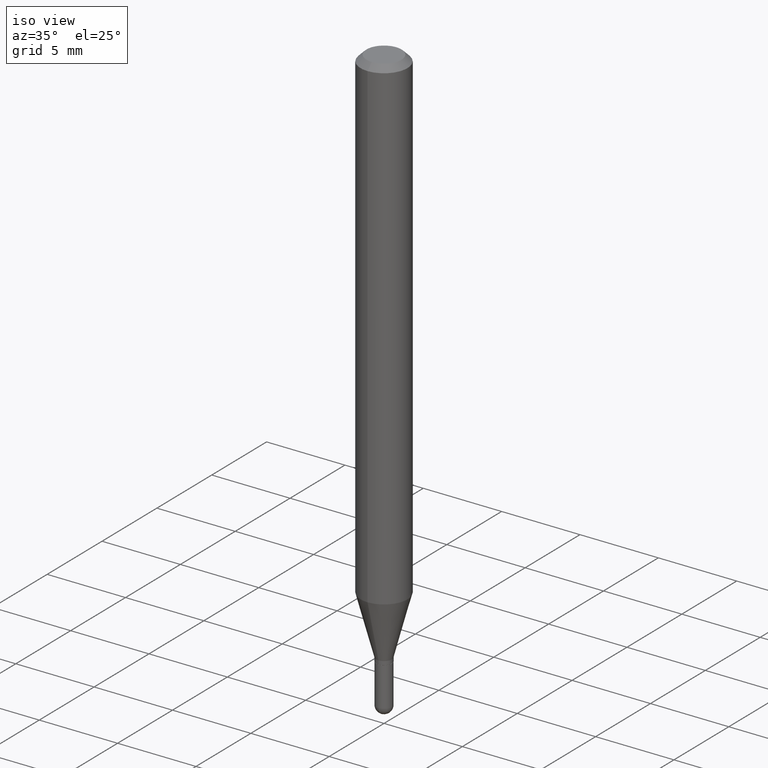
[diagram: clean part render]
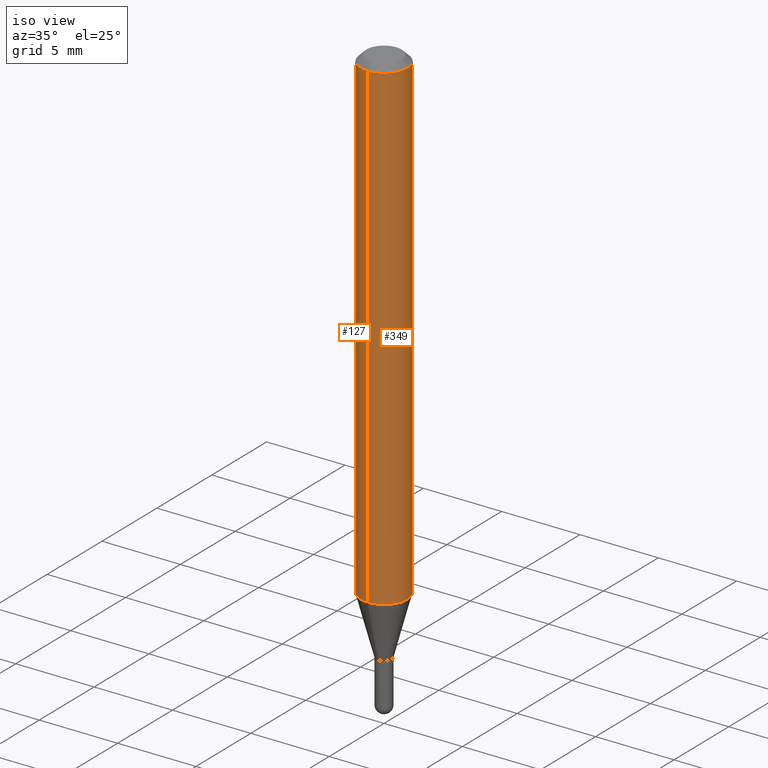
[diagram: same view with one multi-face feature highlighted, each face labeled with its STEP entity id]
A machine part, iso view. The highlighted faces form ONE feature: a constant-radius fillet chain: 2 tangent blend faces with common blend radius 1.4999 mm. The faces share edges in the B-rep.
Their STEP definitions:
[1] entity #349 (Cylinder):
#8 = AXIS2_PLACEMENT_3D ( 'NONE', #19, #184, #501 ) ;
#10 = DIRECTION ( 'NONE',  ( -2.444811295007267252E-29, 3.492422932273066730E-15, 1.000000000000000000 ) ) ;
#18 = VERTEX_POINT ( 'NONE', #417 ) ;
#19 = CARTESIAN_POINT ( 'NONE',  ( 0.000000000000000000, 0.000000000000000000, 0.000000000000000000 ) ) ;
#33 = ORIENTED_EDGE ( 'NONE', *, *, #143, .T. ) ;
#79 = DIRECTION ( 'NONE',  ( -6.982962677686265922E-15, -1.000000000000000000, 3.505890868245046092E-15 ) ) ;
#82 = DIRECTION ( 'NONE',  ( -6.982962677686265922E-15, -1.000000000000000000, 4.626330217890369336E-15 ) ) ;
#100 = ORIENTED_EDGE ( 'NONE', *, *, #412, .F. ) ;
#106 = EDGE_CURVE ( 'NONE', #450, #18, #193, .T. ) ;
#143 = EDGE_CURVE ( 'NONE', #470, #450, #490, .T. ) ;
#145 = ORIENTED_EDGE ( 'NONE', *, *, #106, .T. ) ;
#157 = CARTESIAN_POINT ( 'NONE',  ( 2.985710637963151860E-29, -4.265099855538406098E-15, -1.221243800722164430 ) ) ;
#158 = LINE ( 'NONE', #199, #298 ) ;
#170 = AXIS2_PLACEMENT_3D ( 'NONE', #398, #328, #79 ) ;
#180 = CARTESIAN_POINT ( 'NONE',  ( 4.195754854663687794E-16, 0.05904999999999571703, -1.221243800722164652 ) ) ;
#184 = DIRECTION ( 'NONE',  ( -2.444811295007267252E-29, 3.492422932273066730E-15, 1.000000000000000000 ) ) ;
#193 = LINE ( 'NONE', #255, #485 ) ;
#199 = CARTESIAN_POINT ( 'NONE',  ( -4.123439461173739834E-16, -0.05904999999999999832, 2.062275741507245947E-16 ) ) ;
#213 = CIRCLE ( 'NONE', #170, 0.05904999999999999832 ) ;
#226 = FACE_OUTER_BOUND ( 'NONE', #316, .T. ) ;
#228 = CARTESIAN_POINT ( 'NONE',  ( -4.123439461173442532E-16, -0.05905000000000428656, -1.221243800722164430 ) ) ;
#255 = CARTESIAN_POINT ( 'NONE',  ( 4.195754854663390985E-16, 0.05904999999999999832, -2.062275741507245947E-16 ) ) ;
#298 = VECTOR ( 'NONE', #463, 39.37007874015748143 ) ;
#310 = ORIENTED_EDGE ( 'NONE', *, *, #457, .F. ) ;
#315 = CARTESIAN_POINT ( 'NONE',  ( -4.123439461173736383E-16, -0.05905000000000005383, -0.01499999999999981730 ) ) ;
#316 = EDGE_LOOP ( 'NONE', ( #33, #145, #310, #100 ) ) ;
#328 = DIRECTION ( 'NONE',  ( -2.444811295007267252E-29, 3.492422932273066730E-15, 1.000000000000000000 ) ) ;
#349 = ADVANCED_FACE ( 'NONE', ( #226 ), #377, .T. ) ;
#377 = CYLINDRICAL_SURFACE ( 'NONE', #8, 0.05904999999999999832 ) ;
#382 = AXIS2_PLACEMENT_3D ( 'NONE', #157, #477, #82 ) ;
#398 = CARTESIAN_POINT ( 'NONE',  ( 3.667216942510906659E-31, -5.238634398409608650E-17, -0.01500000000000002373 ) ) ;
#412 = EDGE_CURVE ( 'NONE', #470, #435, #158, .T. ) ;
#417 = CARTESIAN_POINT ( 'NONE',  ( 4.195754854663691739E-16, 0.05904999999999994975, -0.01500000000000023016 ) ) ;
#435 = VERTEX_POINT ( 'NONE', #315 ) ;
#450 = VERTEX_POINT ( 'NONE', #180 ) ;
#457 = EDGE_CURVE ( 'NONE', #435, #18, #213, .T. ) ;
#463 = DIRECTION ( 'NONE',  ( -2.444811295007267252E-29, 3.492422932273066730E-15, 1.000000000000000000 ) ) ;
#470 = VERTEX_POINT ( 'NONE', #228 ) ;
#477 = DIRECTION ( 'NONE',  ( -2.444811295007267252E-29, 3.492422932273066730E-15, 1.000000000000000000 ) ) ;
#485 = VECTOR ( 'NONE', #10, 39.37007874015748143 ) ;
#490 = CIRCLE ( 'NONE', #382, 0.05904999999999999832 ) ;
#501 = DIRECTION ( 'NONE',  ( -6.982962677686265922E-15, -1.000000000000000000, 3.492422932273066730E-15 ) ) ;
[2] entity #127 (Cylinder):
#10 = DIRECTION ( 'NONE',  ( -2.444811295007267252E-29, 3.492422932273066730E-15, 1.000000000000000000 ) ) ;
#18 = VERTEX_POINT ( 'NONE', #417 ) ;
#31 = ORIENTED_EDGE ( 'NONE', *, *, #53, .F. ) ;
#53 = EDGE_CURVE ( 'NONE', #18, #435, #196, .T. ) ;
#97 = AXIS2_PLACEMENT_3D ( 'NONE', #189, #345, #308 ) ;
#106 = EDGE_CURVE ( 'NONE', #450, #18, #193, .T. ) ;
#127 = ADVANCED_FACE ( 'NONE', ( #239 ), #359, .T. ) ;
#158 = LINE ( 'NONE', #199, #298 ) ;
#173 = DIRECTION ( 'NONE',  ( -2.444811295007267252E-29, 3.492422932273066730E-15, 1.000000000000000000 ) ) ;
#174 = CARTESIAN_POINT ( 'NONE',  ( 0.000000000000000000, 0.000000000000000000, 0.000000000000000000 ) ) ;
#180 = CARTESIAN_POINT ( 'NONE',  ( 4.195754854663687794E-16, 0.05904999999999571703, -1.221243800722164652 ) ) ;
#189 = CARTESIAN_POINT ( 'NONE',  ( 3.667216942510906659E-31, -5.238634398409608650E-17, -0.01500000000000002373 ) ) ;
#193 = LINE ( 'NONE', #255, #485 ) ;
#196 = CIRCLE ( 'NONE', #97, 0.05904999999999999832 ) ;
#199 = CARTESIAN_POINT ( 'NONE',  ( -4.123439461173739834E-16, -0.05904999999999999832, 2.062275741507245947E-16 ) ) ;
#211 = CARTESIAN_POINT ( 'NONE',  ( 2.985710637963151860E-29, -4.265099855538406098E-15, -1.221243800722164430 ) ) ;
#228 = CARTESIAN_POINT ( 'NONE',  ( -4.123439461173442532E-16, -0.05905000000000428656, -1.221243800722164430 ) ) ;
#239 = FACE_OUTER_BOUND ( 'NONE', #497, .T. ) ;
#251 = DIRECTION ( 'NONE',  ( -6.982962677686265922E-15, -1.000000000000000000, 4.626330217890369336E-15 ) ) ;
#255 = CARTESIAN_POINT ( 'NONE',  ( 4.195754854663390985E-16, 0.05904999999999999832, -2.062275741507245947E-16 ) ) ;
#298 = VECTOR ( 'NONE', #463, 39.37007874015748143 ) ;
#300 = ORIENTED_EDGE ( 'NONE', *, *, #106, .F. ) ;
#308 = DIRECTION ( 'NONE',  ( -6.982962677686265922E-15, -1.000000000000000000, 3.505890868245046092E-15 ) ) ;
#315 = CARTESIAN_POINT ( 'NONE',  ( -4.123439461173736383E-16, -0.05905000000000005383, -0.01499999999999981730 ) ) ;
#327 = DIRECTION ( 'NONE',  ( -6.982962677686265922E-15, -1.000000000000000000, 3.492422932273066730E-15 ) ) ;
#330 = DIRECTION ( 'NONE',  ( -2.444811295007267252E-29, 3.492422932273066730E-15, 1.000000000000000000 ) ) ;
#345 = DIRECTION ( 'NONE',  ( -2.444811295007267252E-29, 3.492422932273066730E-15, 1.000000000000000000 ) ) ;
#359 = CYLINDRICAL_SURFACE ( 'NONE', #456, 0.05904999999999999832 ) ;
#364 = ORIENTED_EDGE ( 'NONE', *, *, #412, .T. ) ;
#388 = ORIENTED_EDGE ( 'NONE', *, *, #464, .T. ) ;
#394 = AXIS2_PLACEMENT_3D ( 'NONE', #211, #173, #251 ) ;
#406 = CIRCLE ( 'NONE', #394, 0.05904999999999999832 ) ;
#412 = EDGE_CURVE ( 'NONE', #470, #435, #158, .T. ) ;
#417 = CARTESIAN_POINT ( 'NONE',  ( 4.195754854663691739E-16, 0.05904999999999994975, -0.01500000000000023016 ) ) ;
#435 = VERTEX_POINT ( 'NONE', #315 ) ;
#450 = VERTEX_POINT ( 'NONE', #180 ) ;
#456 = AXIS2_PLACEMENT_3D ( 'NONE', #174, #330, #327 ) ;
#463 = DIRECTION ( 'NONE',  ( -2.444811295007267252E-29, 3.492422932273066730E-15, 1.000000000000000000 ) ) ;
#464 = EDGE_CURVE ( 'NONE', #450, #470, #406, .T. ) ;
#470 = VERTEX_POINT ( 'NONE', #228 ) ;
#485 = VECTOR ( 'NONE', #10, 39.37007874015748143 ) ;
#497 = EDGE_LOOP ( 'NONE', ( #300, #388, #364, #31 ) ) ;